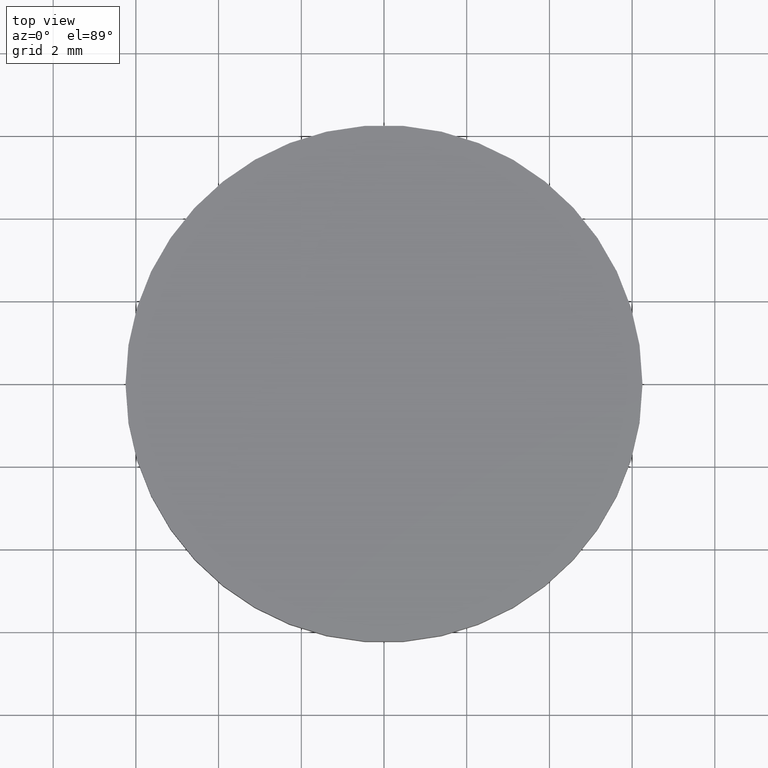
[diagram: clean part render]
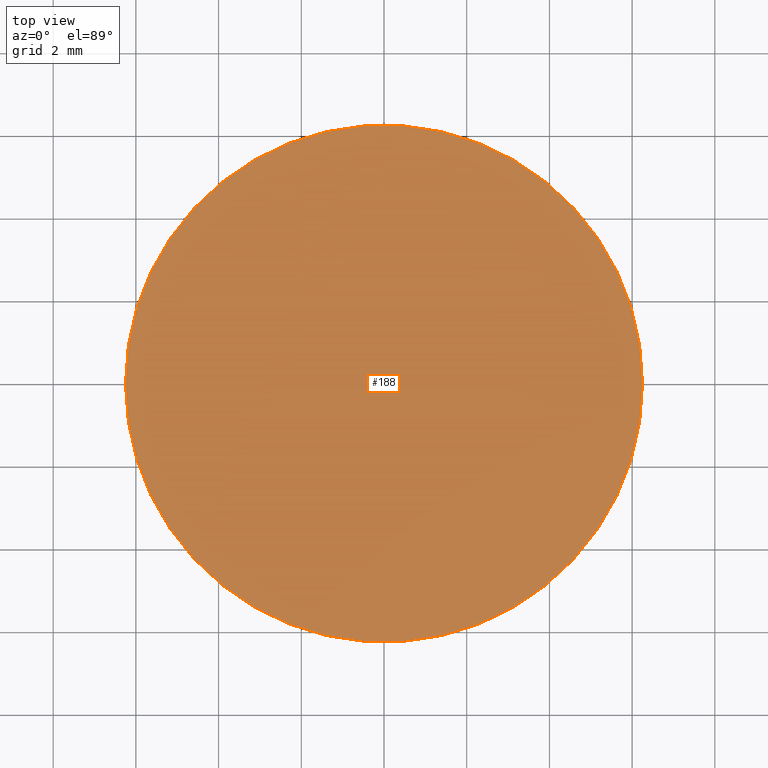
[diagram: same view with one face highlighted and labeled with its STEP entity id]
A machine part, top view. The second image highlights one B-rep face of the part: STEP entity #188.
In plain terms, the highlighted planar face has unit normal (0, 0, 1).
Its self-contained STEP definition (entity closure, byte-faithful):
#1 = DIRECTION ( 'NONE',  ( 1.000000000000000000, 0.0000000000000000000, -0.0000000000000000000 ) ) ;
#5 = VERTEX_POINT ( 'NONE', #84 ) ;
#22 = ORIENTED_EDGE ( 'NONE', *, *, #159, .T. ) ;
#31 = CIRCLE ( 'NONE', #184, 6.249999999999998200 ) ;
#62 = CARTESIAN_POINT ( 'NONE',  ( 0.0000000000000000000, 0.0000000000000000000, 1.100000000000000100 ) ) ;
#66 = CARTESIAN_POINT ( 'NONE',  ( 0.0000000000000000000, 0.0000000000000000000, 1.100000000000000100 ) ) ;
#73 = ORIENTED_EDGE ( 'NONE', *, *, #239, .T. ) ;
#84 = CARTESIAN_POINT ( 'NONE',  ( 6.249999999999998200, 7.654042494670955600E-016, 1.100000000000000100 ) ) ;
#85 = CIRCLE ( 'NONE', #114, 6.249999999999998200 ) ;
#114 = AXIS2_PLACEMENT_3D ( 'NONE', #198, #120, #203 ) ;
#117 = DIRECTION ( 'NONE',  ( 0.0000000000000000000, 0.0000000000000000000, 1.000000000000000000 ) ) ;
#120 = DIRECTION ( 'NONE',  ( 0.0000000000000000000, 0.0000000000000000000, 1.000000000000000000 ) ) ;
#130 = EDGE_LOOP ( 'NONE', ( #73, #22 ) ) ;
#132 = CARTESIAN_POINT ( 'NONE',  ( -6.249999999999998200, 0.0000000000000000000, 1.100000000000000100 ) ) ;
#159 = EDGE_CURVE ( 'NONE', #5, #209, #31, .T. ) ;
#173 = DIRECTION ( 'NONE',  ( 0.0000000000000000000, 0.0000000000000000000, 1.000000000000000000 ) ) ;
#184 = AXIS2_PLACEMENT_3D ( 'NONE', #62, #173, #232 ) ;
#188 = ADVANCED_FACE ( 'NONE', ( #243 ), #219, .T. ) ;
#198 = CARTESIAN_POINT ( 'NONE',  ( 0.0000000000000000000, 0.0000000000000000000, 1.100000000000000100 ) ) ;
#203 = DIRECTION ( 'NONE',  ( 1.000000000000000000, 0.0000000000000000000, 0.0000000000000000000 ) ) ;
#209 = VERTEX_POINT ( 'NONE', #132 ) ;
#219 = PLANE ( 'NONE',  #229 ) ;
#229 = AXIS2_PLACEMENT_3D ( 'NONE', #66, #117, #1 ) ;
#232 = DIRECTION ( 'NONE',  ( 1.000000000000000000, 0.0000000000000000000, 0.0000000000000000000 ) ) ;
#239 = EDGE_CURVE ( 'NONE', #209, #5, #85, .T. ) ;
#243 = FACE_OUTER_BOUND ( 'NONE', #130, .T. ) ;